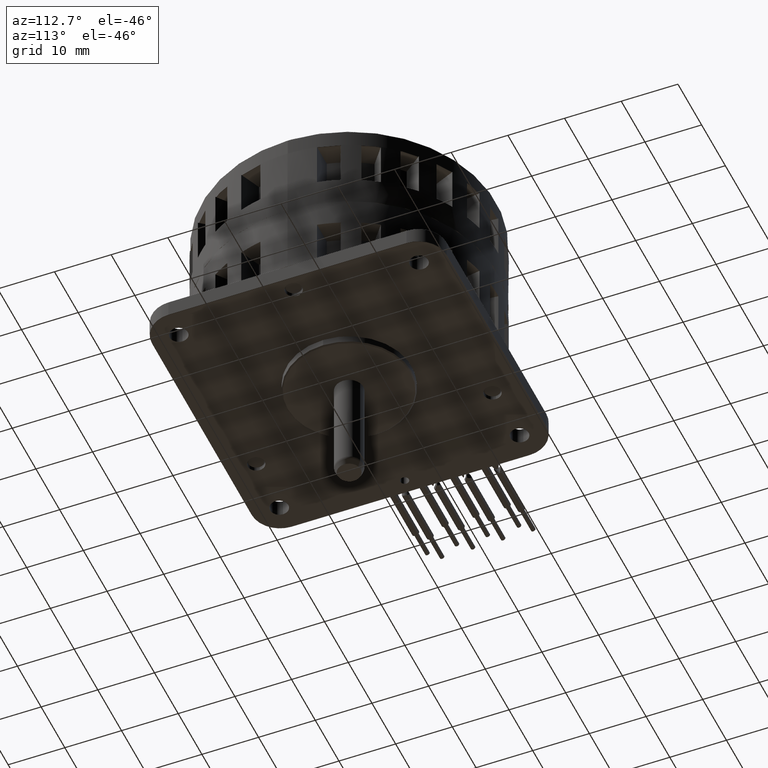
[diagram: clean part render]
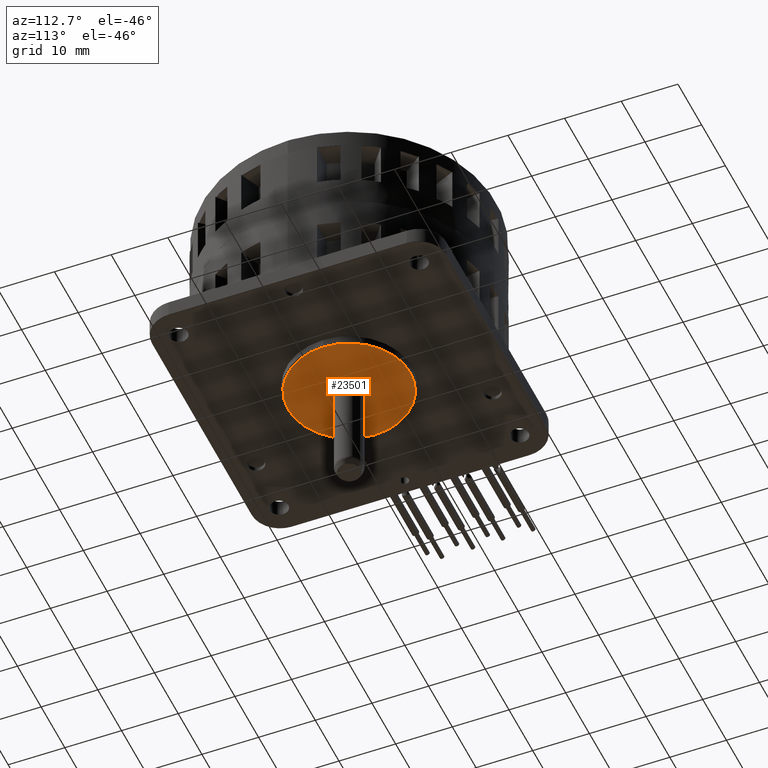
[diagram: same view with one face highlighted and labeled with its STEP entity id]
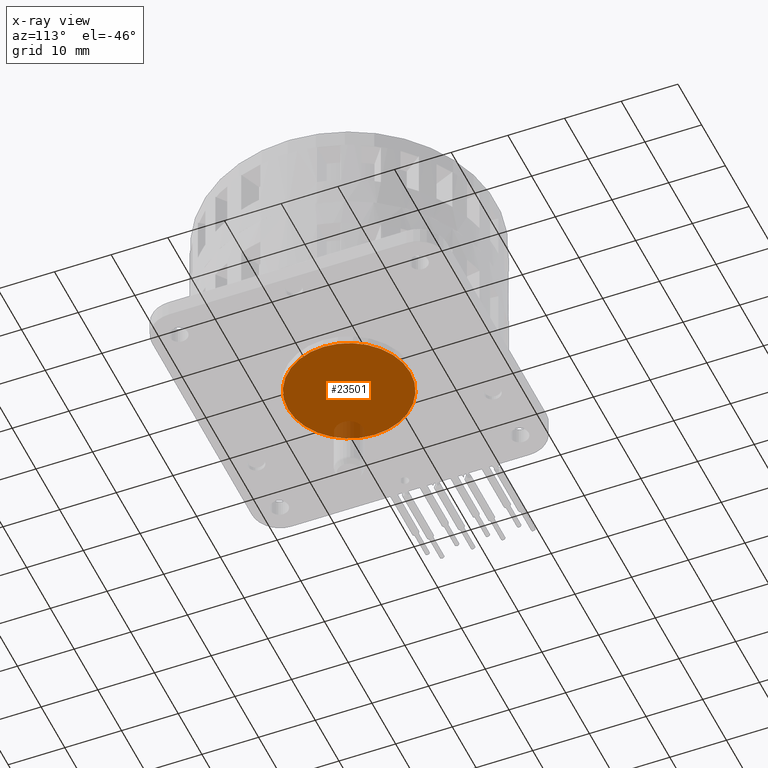
[diagram: x-ray of the same camera — body ghosted, the highlighted face saturated]
A machine part, auxiliary view. The second image highlights one B-rep face of the part: STEP entity #23501.
The next image is the same camera in x-ray: the body ghosted, the highlighted face saturated — about 4% of this face is hidden behind the body in this view.
In plain terms, the highlighted planar face has unit normal (0, 0, -1).
Its self-contained STEP definition (entity closure, byte-faithful):
#18640=CARTESIAN_POINT('',(0.E0,0.E0,1.755E1));
#18641=DIRECTION('',(0.E0,0.E0,-1.E0));
#18642=DIRECTION('',(1.E0,0.E0,0.E0));
#18643=AXIS2_PLACEMENT_3D('',#18640,#18641,#18642);
#18645=CARTESIAN_POINT('',(0.E0,0.E0,1.755E1));
#18646=DIRECTION('',(0.E0,0.E0,-1.E0));
#18647=DIRECTION('',(0.E0,-1.E0,0.E0));
#18648=AXIS2_PLACEMENT_3D('',#18645,#18646,#18647);
#18650=CARTESIAN_POINT('',(0.E0,0.E0,1.755E1));
#18651=DIRECTION('',(0.E0,0.E0,-1.E0));
#18652=DIRECTION('',(-1.E0,0.E0,0.E0));
#18653=AXIS2_PLACEMENT_3D('',#18650,#18651,#18652);
#18655=CARTESIAN_POINT('',(0.E0,0.E0,1.755E1));
#18656=DIRECTION('',(0.E0,0.E0,-1.E0));
#18657=DIRECTION('',(0.E0,1.E0,0.E0));
#18658=AXIS2_PLACEMENT_3D('',#18655,#18656,#18657);
#20766=CARTESIAN_POINT('',(0.E0,1.08E1,1.755E1));
#20767=CARTESIAN_POINT('',(1.08E1,0.E0,1.755E1));
#20768=VERTEX_POINT('',#20766);
#20769=VERTEX_POINT('',#20767);
#20770=CARTESIAN_POINT('',(-1.08E1,0.E0,1.755E1));
#20771=VERTEX_POINT('',#20770);
#20772=CARTESIAN_POINT('',(0.E0,-1.08E1,1.755E1));
#20773=VERTEX_POINT('',#20772);
#23488=CARTESIAN_POINT('',(0.E0,0.E0,1.755E1));
#23489=DIRECTION('',(0.E0,0.E0,1.E0));
#23490=DIRECTION('',(1.E0,0.E0,0.E0));
#23491=AXIS2_PLACEMENT_3D('',#23488,#23489,#23490);
#23492=PLANE('',#23491);
#23494=ORIENTED_EDGE('',*,*,#23493,.T.);
#23496=ORIENTED_EDGE('',*,*,#23495,.T.);
#23497=ORIENTED_EDGE('',*,*,#23477,.T.);
#23498=ORIENTED_EDGE('',*,*,#23475,.T.);
#23499=EDGE_LOOP('',(#23494,#23496,#23497,#23498));
#23500=FACE_OUTER_BOUND('',#23499,.F.);
#23501=ADVANCED_FACE('',(#23500),#23492,.T.);
#18644=CIRCLE('',#18643,1.08E1);
#18649=CIRCLE('',#18648,1.08E1);
#18654=CIRCLE('',#18653,1.08E1);
#18659=CIRCLE('',#18658,1.08E1);
#23475=EDGE_CURVE('',#20768,#20769,#18659,.T.);
#23477=EDGE_CURVE('',#20771,#20768,#18654,.T.);
#23493=EDGE_CURVE('',#20769,#20773,#18644,.T.);
#23495=EDGE_CURVE('',#20773,#20771,#18649,.T.);